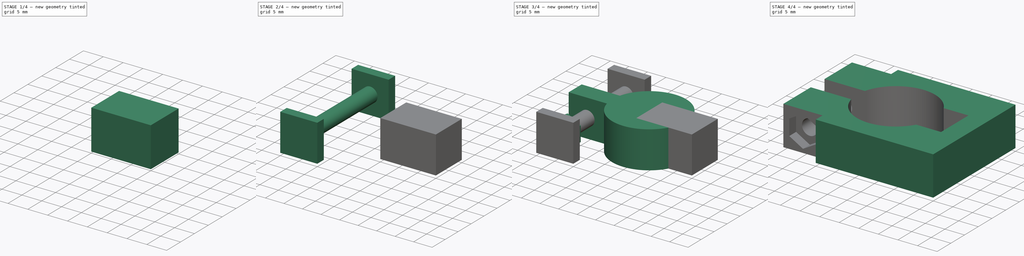
[diagram: build sequence overview — one tinted view per stage of 4, left to right]
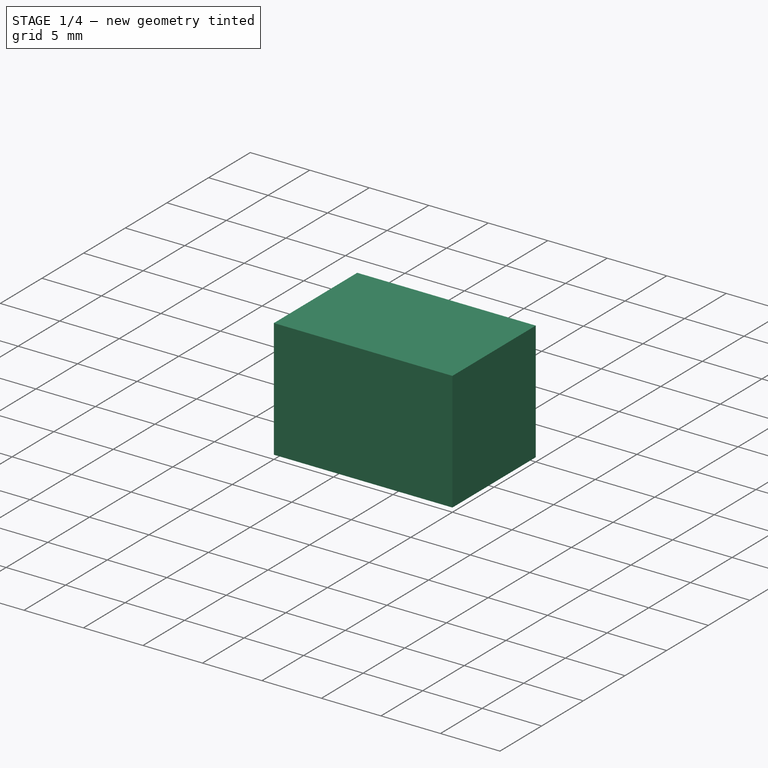
[diagram: stage 1 of 4 — iso view after this stage's code; geometry added in this stage tinted green]
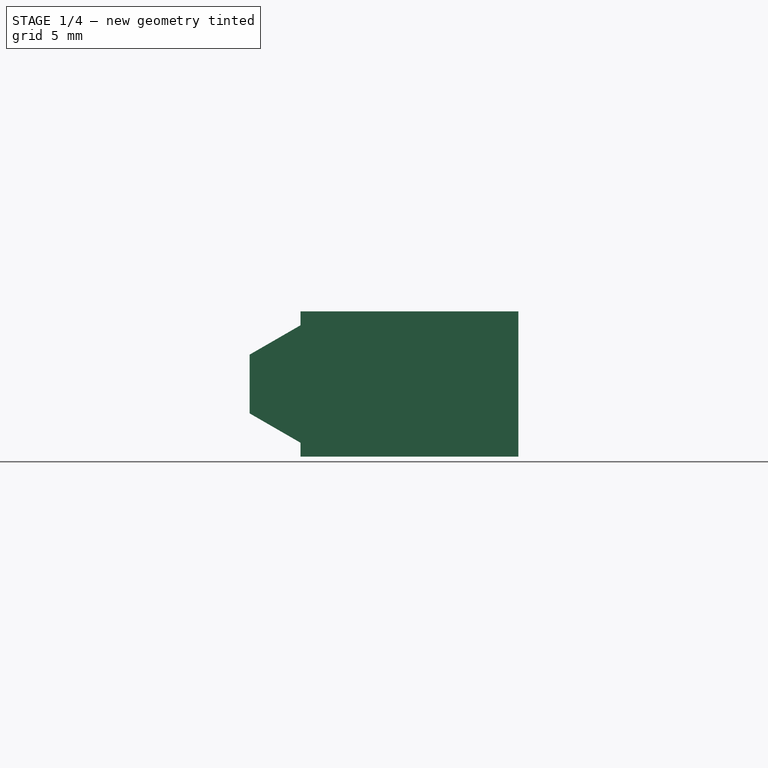
[diagram: stage 1 of 4 — front view after this stage's code; geometry added in this stage tinted green]
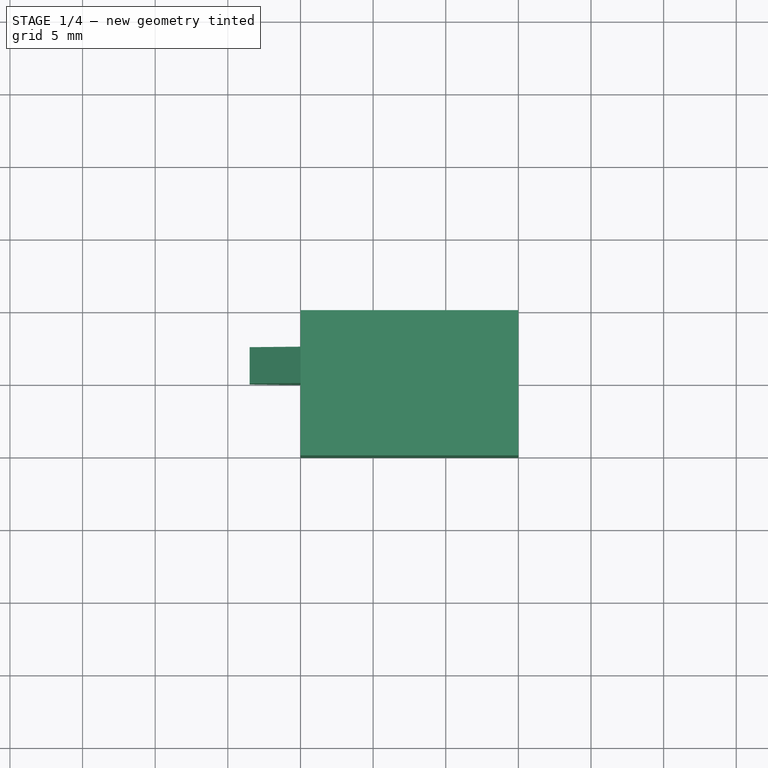
[diagram: stage 1 of 4 — top view after this stage's code; geometry added in this stage tinted green]
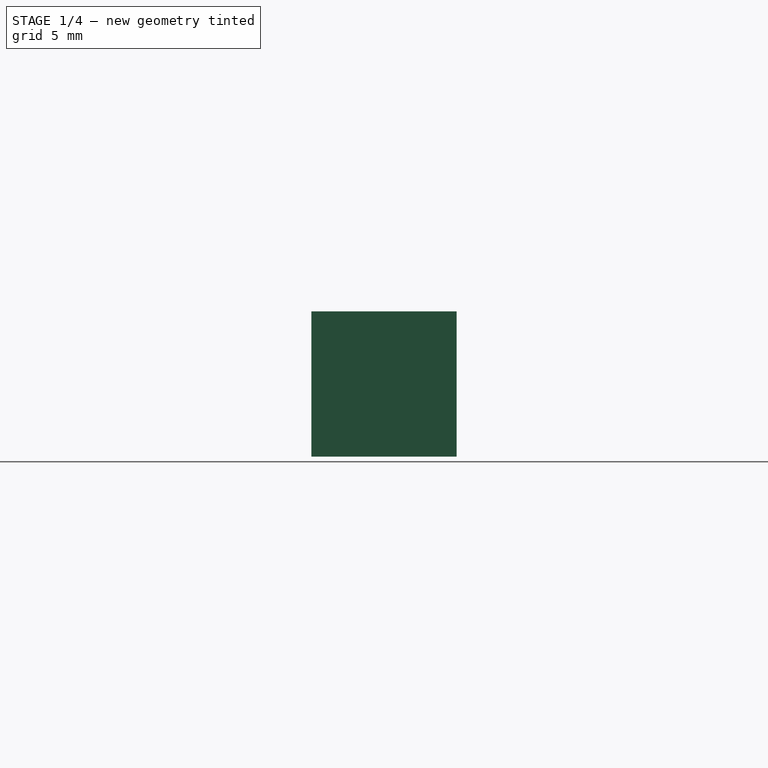
[diagram: stage 1 of 4 — right view after this stage's code; geometry added in this stage tinted green]
FCSTD DOCUMENT  (FreeCAD 0.17R13522 (Git))
Label: fastener-join-20mm
License: All rights reserved
LicenseURL: http://en.wikipedia.org/wiki/All_rights_reserved
objects: Part::Box×5, Part::Cylinder×2, Sketcher::SketchObject×1, PartDesign::Pad×1, PartDesign::Body×1, Part::MultiFuse×1, Part::Cut×1
note: 13 computed .brp shape members not serialized (recipe doc carries the construction recipe); baked Part::Feature solids carry a one-line shape summary decoded from their .brp

FEATURE [Sketcher::SketchObject] Sketch
  MapMode = 5
  Placement = pos=(0,0,0) rot=(1,0,0;1.5708rad)
  Support = -> [XZ_Plane]
  sketch-geometry (7):
    g0: LineSegment StartX=0 StartY=-4.04145 StartZ=0 EndX=3.5 EndY=-2.02073 EndZ=0
    g1: LineSegment StartX=3.5 StartY=-2.02073 StartZ=0 EndX=3.5 EndY=2.02073 EndZ=0
    g2: LineSegment StartX=3.5 StartY=2.02073 StartZ=0 EndX=0 EndY=4.04145 EndZ=0
    g3: LineSegment StartX=0 StartY=4.04145 StartZ=0 EndX=-3.5 EndY=2.02073 EndZ=0
    g4: LineSegment StartX=-3.5 StartY=2.02073 StartZ=0 EndX=-3.5 EndY=-2.02073 EndZ=0
    g5: LineSegment StartX=-3.5 StartY=-2.02073 StartZ=0 EndX=0 EndY=-4.04145 EndZ=0
    g6: Circle [constr] CenterX=0 CenterY=0 CenterZ=0 NormalX=0 NormalY=0 NormalZ=1 AngleXU=0 Radius=4.04145
  constraints (17):
    c: Coincident(g0,g1)
    c: Coincident(g1,g2)
    c: Coincident(g2,g3)
    c: Coincident(g3,g4)
    c: Coincident(g4,g5)
    c: Coincident(g5,g0)
    c: Equal(g0, g1-g5) x5
    c: PointOnObject(g0,g6)
    c: PointOnObject(g1,g6)
    c: PointOnObject(g2,g6)
    c: PointOnObject(g3,g6)
    c: PointOnObject(g4,g6)
    c: PointOnObject(g5,g6)
    c: PointOnObject(g6,g-1)
    c: Coincident(g-1,g6)
    c: DistanceY(g3,g1) = 0
    c: DistanceX(g3,g1) = 7
FEATURE [PartDesign::Pad] Pad
  Length = 2.5
  Length2 = 100
  Placement = pos=(0,0,0) rot=(1,0,0;1.5708rad)
  Profile = -> Sketch
  Reversed = true
  Type = 0
FEATURE [PartDesign::Body] Body
  Group = -> [Sketch,Pad]
  Origin = -> Origin
  Placement = pos=(-15,-12.5,0) rot=(0,0,1;0rad)
  Tip = -> Pad
FEATURE [Part::Box] Box004  label="Cube004"
  AttacherType = Attacher::AttachEngine3D
  Height = 10
  Length = 15
  Placement = pos=(0,-5,-5) rot=(0,0,1;0rad)
  Width = 10
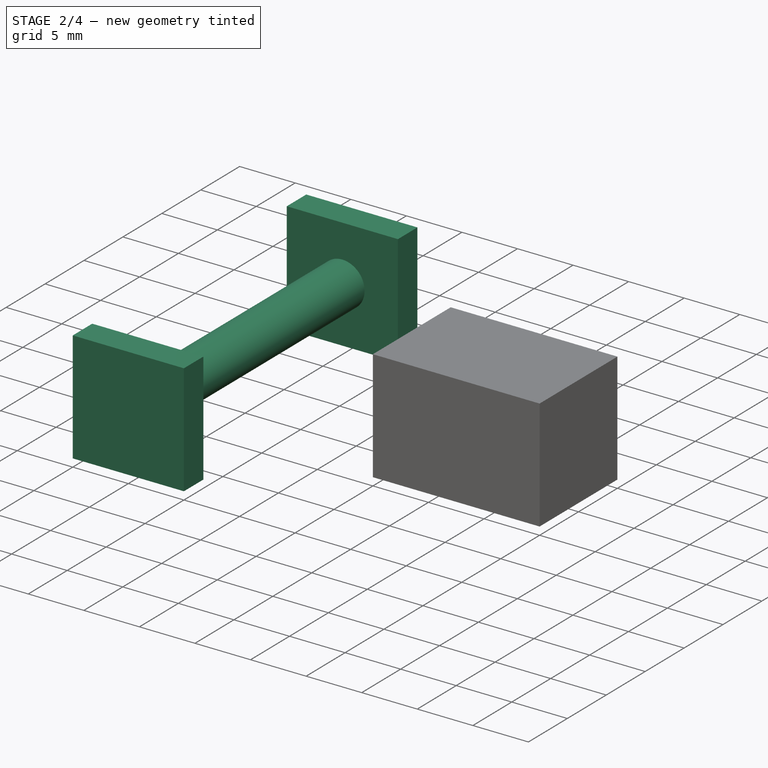
[diagram: stage 2 of 4 — iso view after this stage's code; geometry added in this stage tinted green]
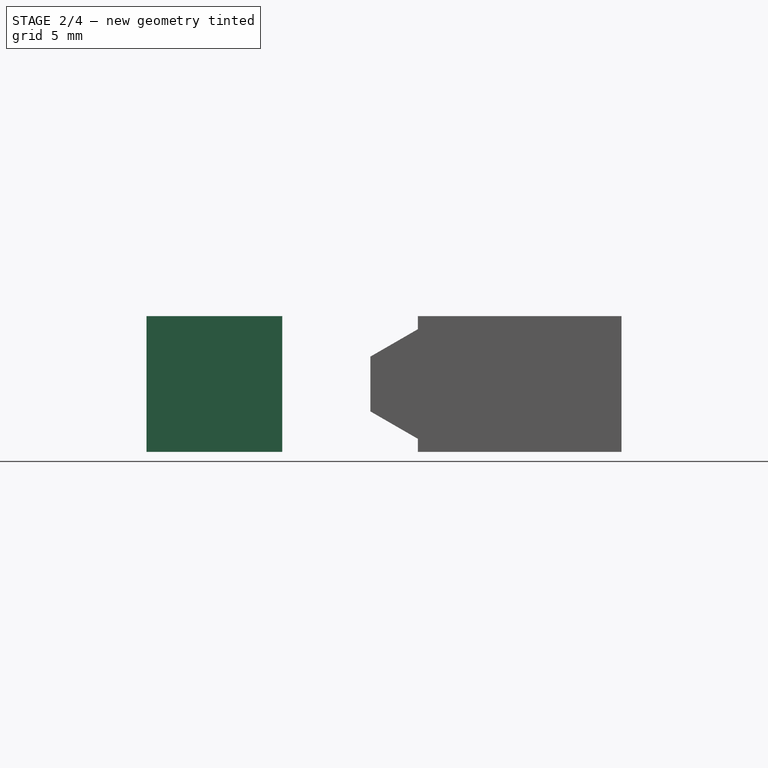
[diagram: stage 2 of 4 — front view after this stage's code; geometry added in this stage tinted green]
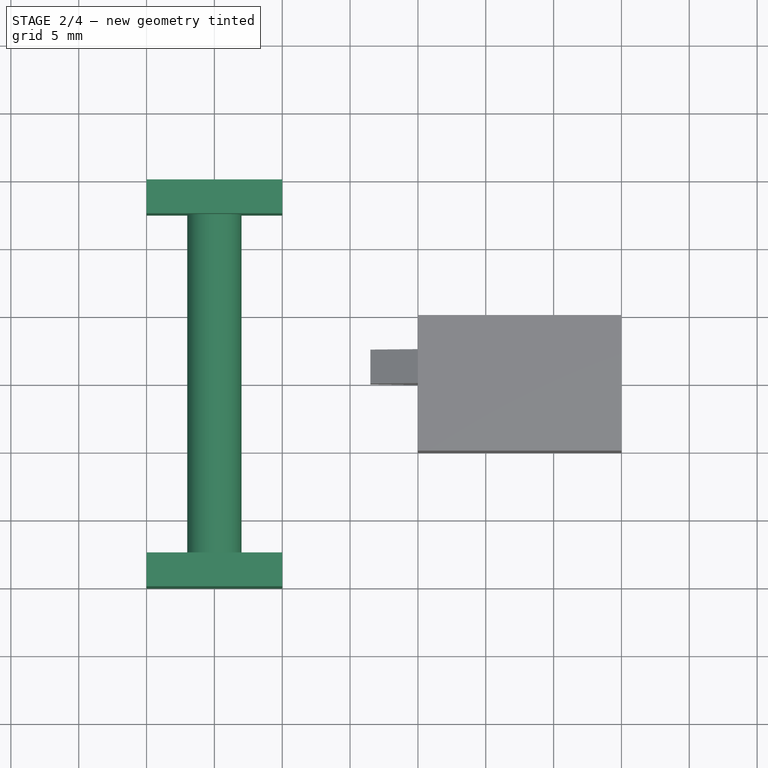
[diagram: stage 2 of 4 — top view after this stage's code; geometry added in this stage tinted green]
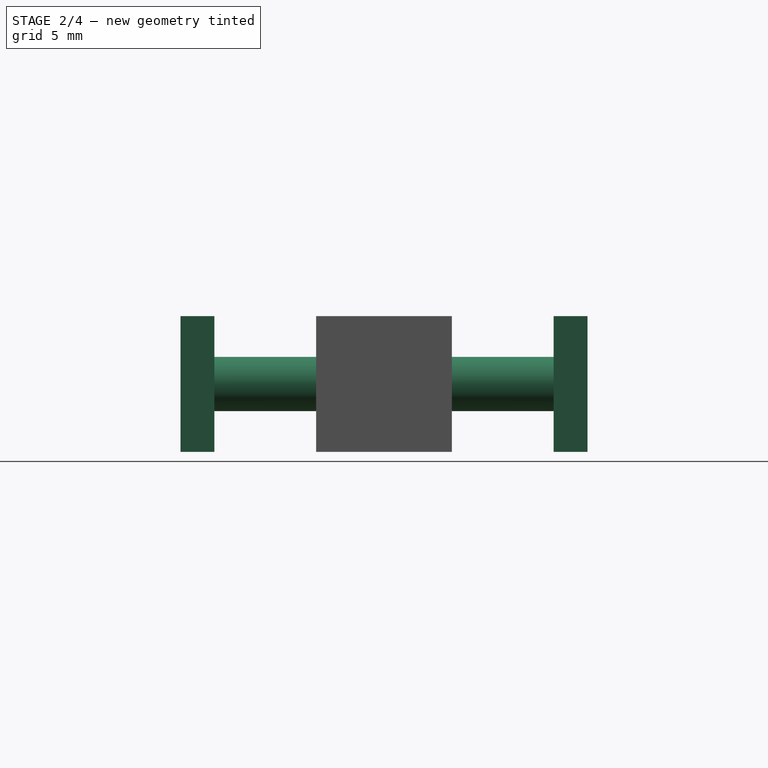
[diagram: stage 2 of 4 — right view after this stage's code; geometry added in this stage tinted green]
FEATURE [Part::Cylinder] Cylinder001
  Angle = 360
  AttacherType = Attacher::AttachEngine3D
  Height = 30
  Placement = pos=(-15,-15,0) rot=(-1,0,0;1.5708rad)
  Radius = 2
FEATURE [Part::Box] Box002  label="Cube002"
  AttacherType = Attacher::AttachEngine3D
  Height = 10
  Length = 10
  Placement = pos=(-20,12.5,-5) rot=(0,0,1;0rad)
  Width = 2.5
FEATURE [Part::Box] Box003  label="Cube003"
  AttacherType = Attacher::AttachEngine3D
  Height = 10
  Length = 10
  Placement = pos=(-20,-15,-5) rot=(0,0,1;0rad)
  Width = 2.5
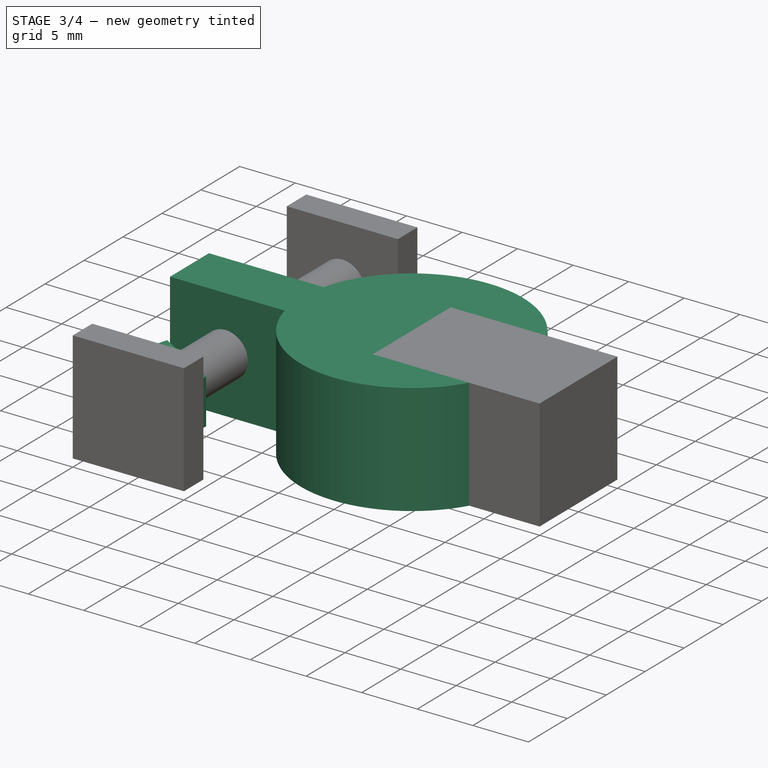
[diagram: stage 3 of 4 — iso view after this stage's code; geometry added in this stage tinted green]
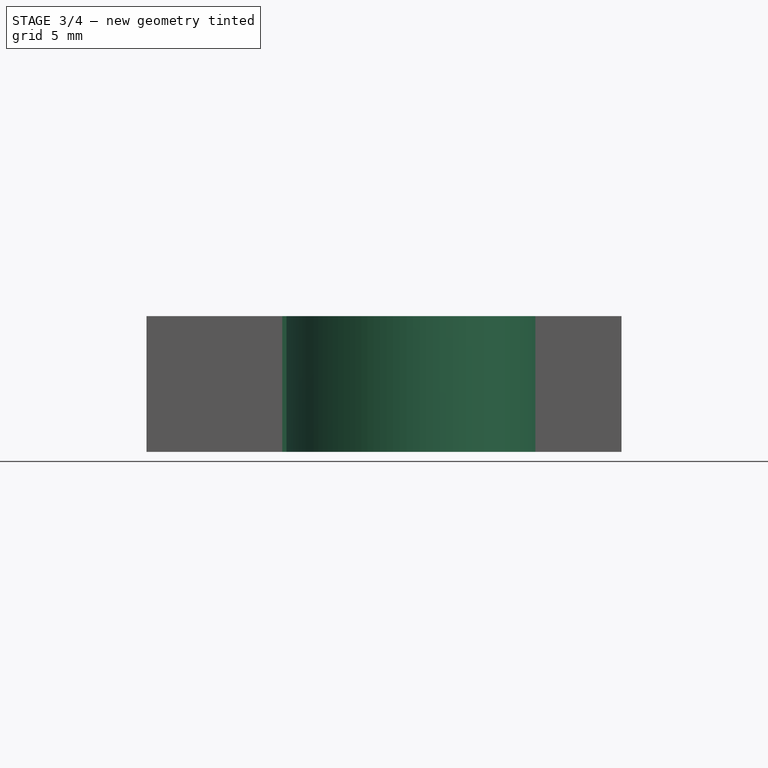
[diagram: stage 3 of 4 — front view after this stage's code; geometry added in this stage tinted green]
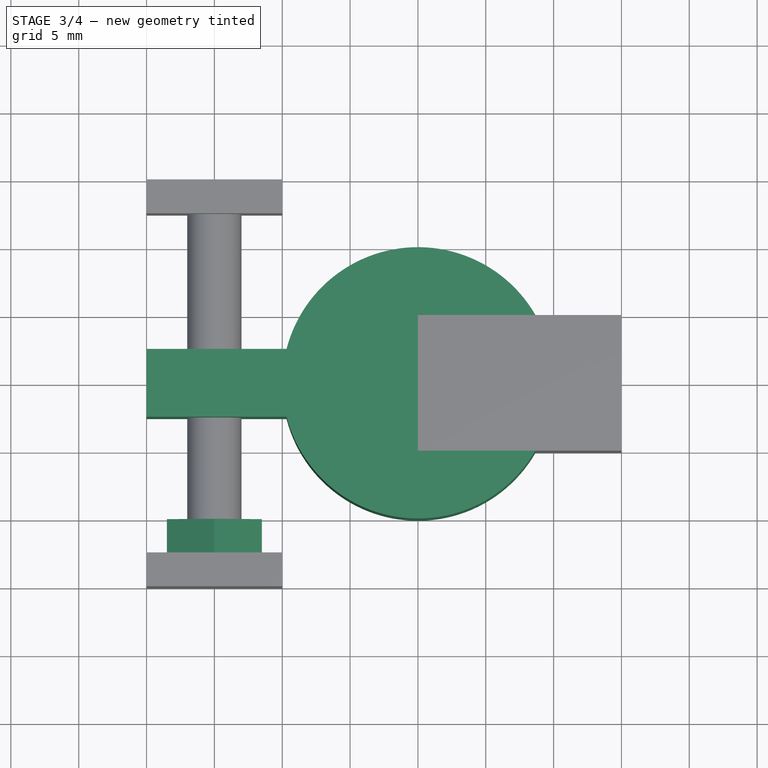
[diagram: stage 3 of 4 — top view after this stage's code; geometry added in this stage tinted green]
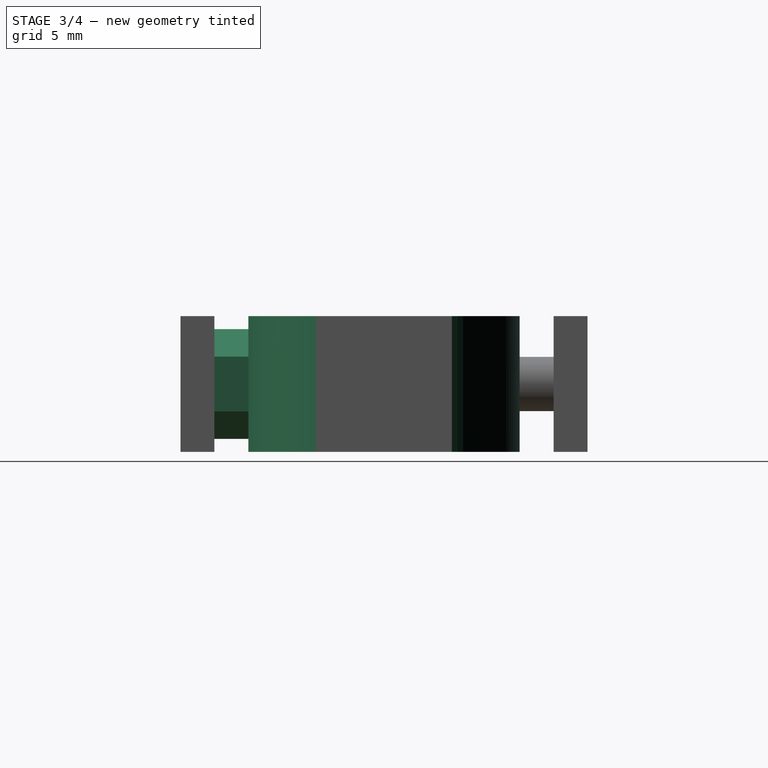
[diagram: stage 3 of 4 — right view after this stage's code; geometry added in this stage tinted green]
FEATURE [Part::Cylinder] Cylinder
  Angle = 360
  AttacherType = Attacher::AttachEngine3D
  Height = 10
  Placement = pos=(0,0,-5) rot=(0,0,1;0rad)
  Radius = 10
FEATURE [Part::Box] Box001  label="Cube001"
  AttacherType = Attacher::AttachEngine3D
  Height = 10
  Length = 15
  Placement = pos=(-20,-2.5,-5) rot=(0,0,1;0rad)
  Width = 5
FEATURE [Part::MultiFuse] Fusion  label="Negative Fusion"
  Shapes = -> [Box001,Cylinder,Cylinder001,Box002,Box003,Body,Box004]
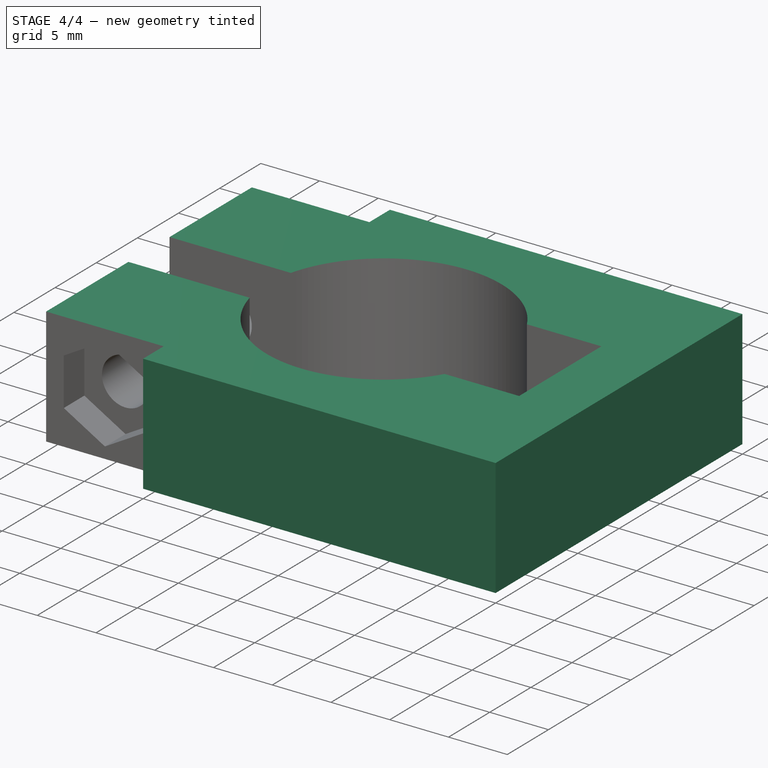
[diagram: stage 4 of 4 — iso view after this stage's code; geometry added in this stage tinted green]
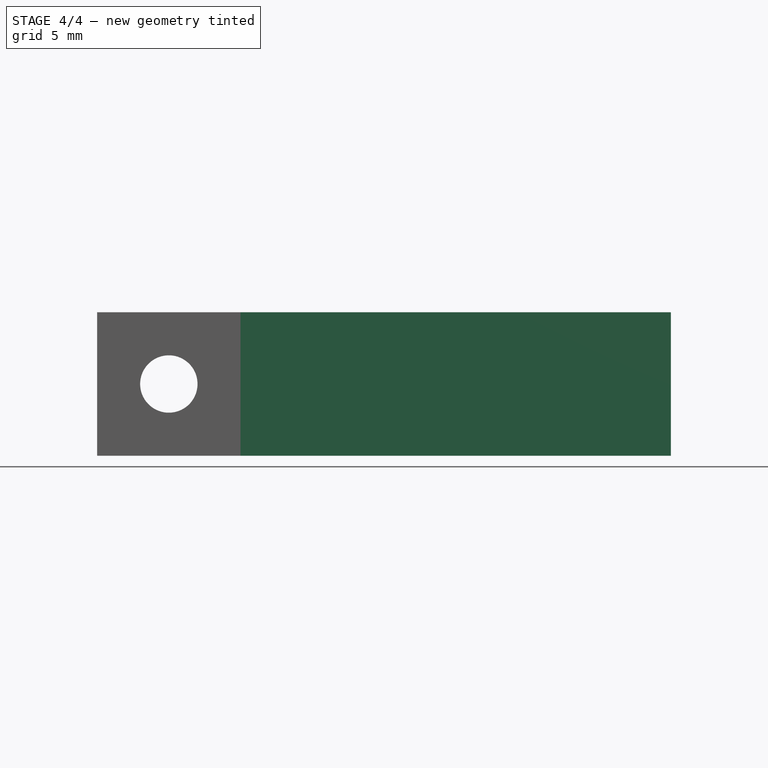
[diagram: stage 4 of 4 — front view after this stage's code; geometry added in this stage tinted green]
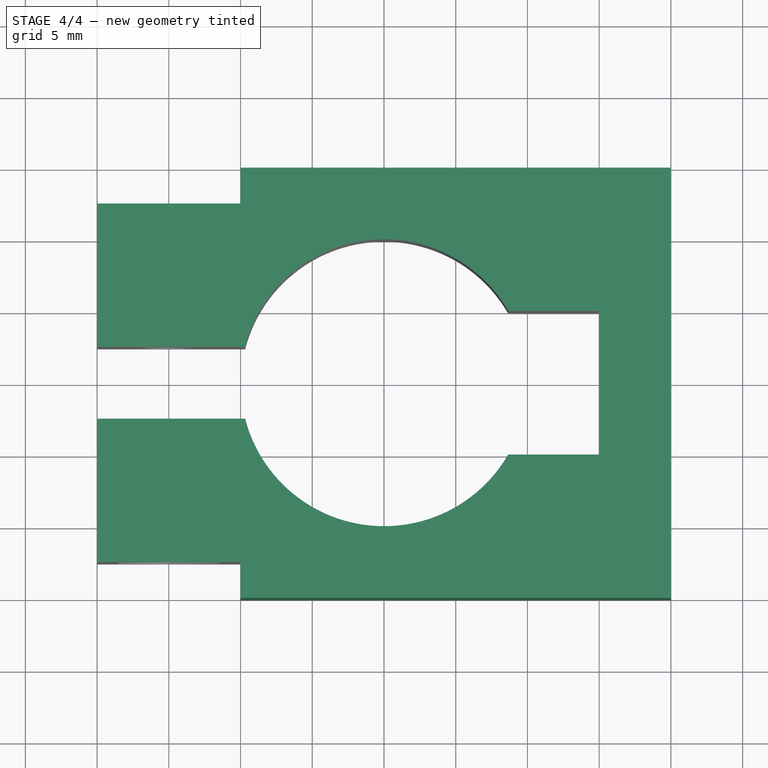
[diagram: stage 4 of 4 — top view after this stage's code; geometry added in this stage tinted green]
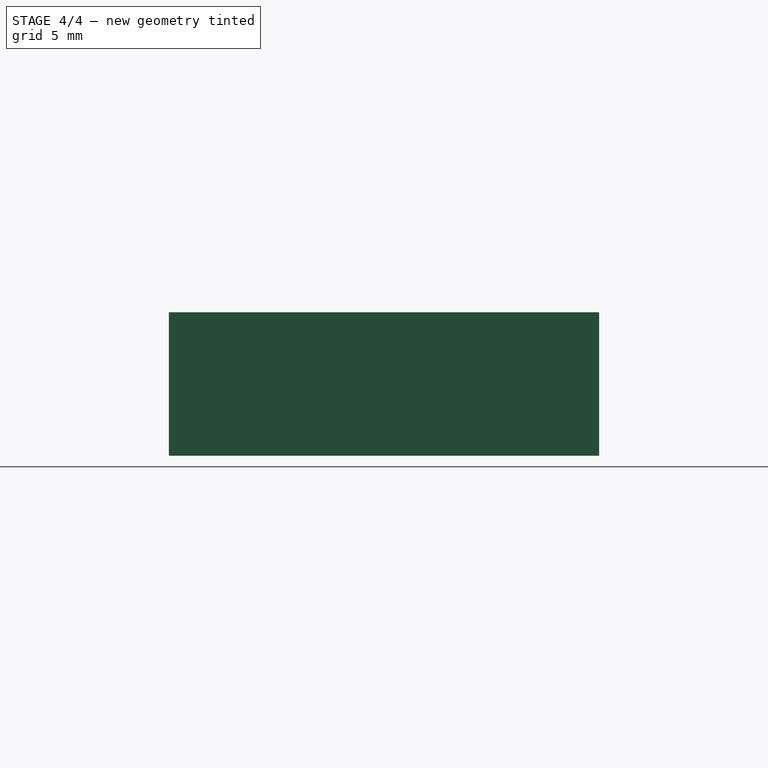
[diagram: stage 4 of 4 — right view after this stage's code; geometry added in this stage tinted green]
FEATURE [Part::Box] Box  label="Cube"
  AttacherType = Attacher::AttachEngine3D
  Height = 10
  Length = 40
  Placement = pos=(-20,-15,-5) rot=(0,0,1;0rad)
  Width = 30
FEATURE [Part::Cut] Cut
  Base = -> Box
  Tool = -> Fusion
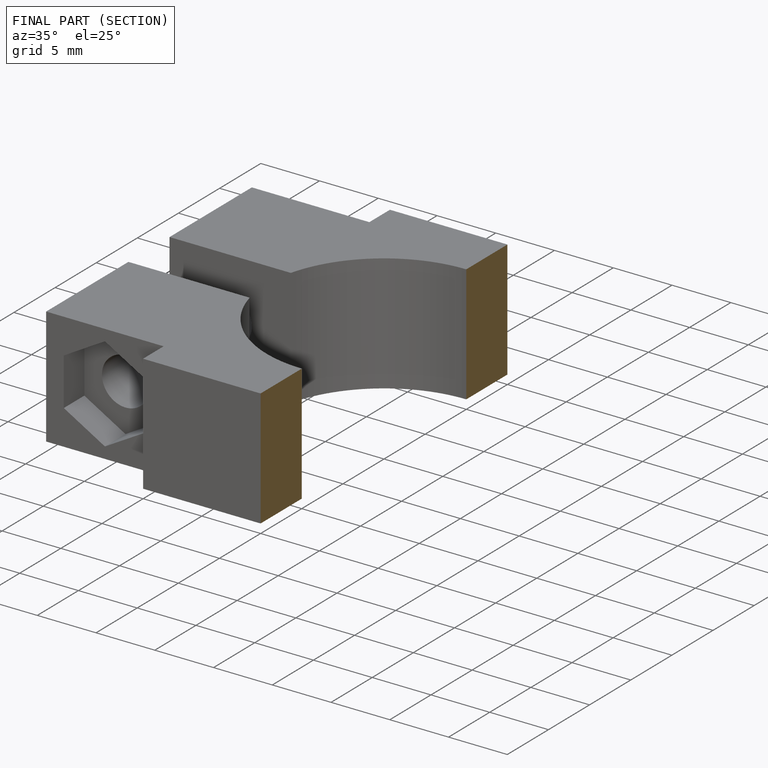
[diagram: finished part — half-section view (interior)]
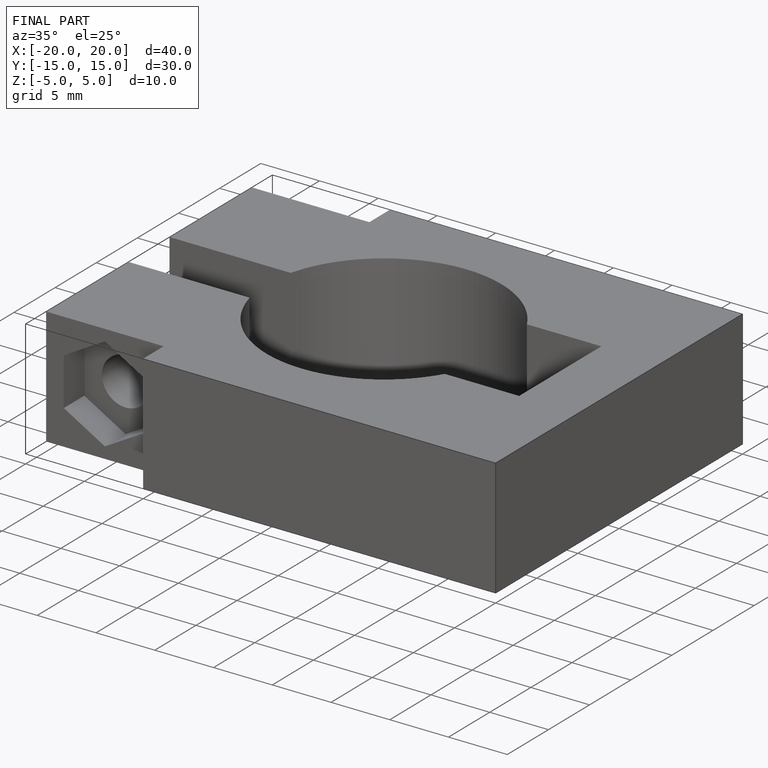
[diagram: finished part — iso view with bounding-box wireframe]
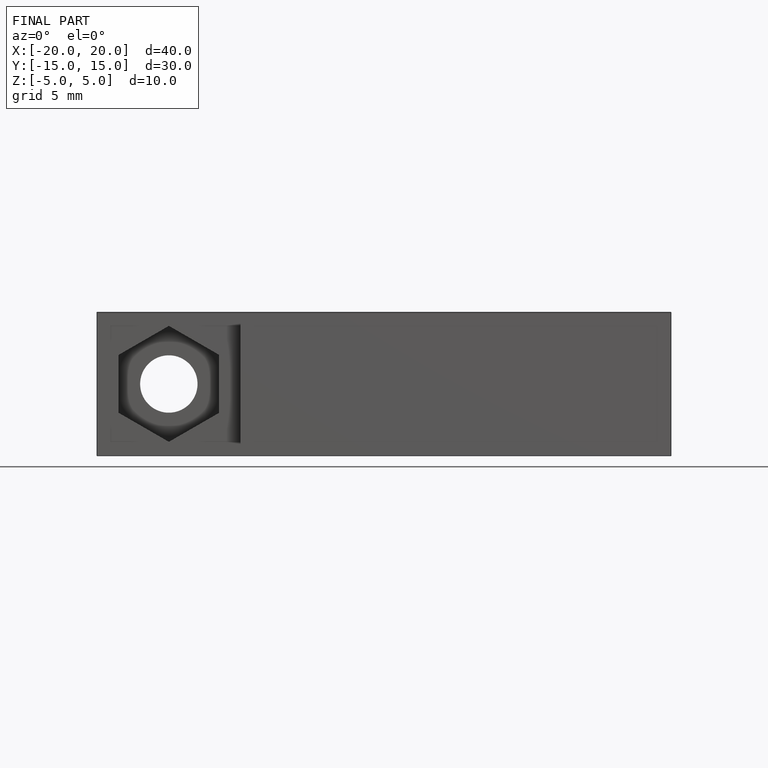
[diagram: finished part — front view with bounding-box wireframe]
